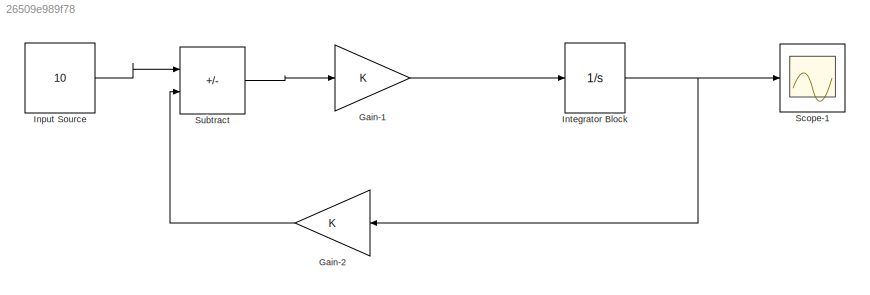
MODEL slx_26509e989f78
KIND model
CONFIG AbsTol = auto
CONFIG EnableMultiTasking = off
CONFIG FixedStep = auto
CONFIG MaxStep = auto
CONFIG MinStep = auto
CONFIG RelTol = 1e-3
CONFIG SampleTimeConstraint = Unconstrained
CONFIG SolverName = VariableStepAuto
CONFIG StartTime = 0.0
CONFIG StopTime = 10.0
BLOCK [Gain] Gain-1
BLOCK [Gain] Gain-2
  NameLocation = top
BLOCK [Constant] Input Source
  Value = 10
BLOCK [Integrator] Integrator Block
BLOCK [Scope] Scope-1
  Floating = off
  NumInputPorts = 1
  ScopeSpecificationString = Simulink.scopes.TimeScopeBlockCfg('CurrentConfiguration', extmgr.ConfigurationSet(extmgr.Configuration('Core','General UI',true,'FigureColor',[1 1 0]),extmgr.Configuration('Core','Source UI',true),extmgr.Configuration('Sources','WiredSimulink',true),extmgr.Configuration('Visuals','Time Domain',true,'SerializedDisplays',{struct('MinYLimReal','-1.24994','MaxYLimReal','11.24949','YLabelReal','','MinY...<+1496ch>
BLOCK [Sum] Subtract
  IconShape = rectangular
  Inputs = +-
LINE Gain-1:1 -> Integrator Block:1
LINE Gain-2:1 -> Subtract:2
LINE Input Source:1 -> Subtract:1
NET Integrator Block:1 -> Gain-2:1, Scope-1:1
LINE Subtract:1 -> Gain-1:1
note: NET lines group one-source signal fan-out (src -> all destinations, sorted); 1:1 wires keep LINE
